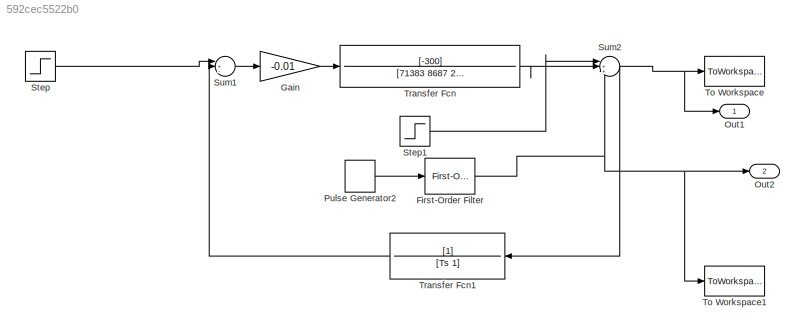
MODEL slx_592cec5522b0
KIND model
CONFIG AbsTol = auto
CONFIG EnableMultiTasking = off
CONFIG FixedStep = auto
CONFIG MaxStep = auto
CONFIG MinStep = auto
CONFIG RelTol = 1e-3
CONFIG SampleTimeConstraint = Unconstrained
CONFIG Solver = VariableStepAuto
CONFIG SolverName = VariableStepAuto
CONFIG StartTime = 0.0
CONFIG StopTime = 1000
BLOCK [Reference] First-Order Filter  REF=powerlib_meascontrol/Filters/First-Order
Filter
  Ports = [1, 1]
  SourceBlock = powerlib_meascontrol/Filters/First-Order\nFilter
  SourceProductBaseCode = PS
  SourceProductName = Simscape Power Systems
  SourceType = First-Order Filter
BLOCK [Gain] Gain
  Gain = -0.01
  OutDataTypeStr = Inherit: Inherit via internal rule
  ParamDataTypeStr = Inherit: Inherit via internal rule
  SaturateOnIntegerOverflow = off
BLOCK [Outport] Out1
  IconDisplay = Port number
BLOCK [Outport] Out2
  IconDisplay = Port number
  Port = 2
BLOCK [DiscretePulseGenerator] Pulse Generator2
  Amplitude = 90
  Period = 1000
  PhaseDelay = 30
  Ports = [0, 1]
  PulseType = Time based
  PulseWidth = 10
BLOCK [Step] Step
  After = 110
  SampleTime = 0
BLOCK [Step] Step1
  After = 110
  SampleTime = 0
BLOCK [Sum] Sum1
  IconShape = round
  InputSameDT = off
  Inputs = |+-+
  OutDataTypeStr = Inherit: Inherit via internal rule
  Ports = [3, 1]
  SaturateOnIntegerOverflow = off
BLOCK [Sum] Sum2
  IconShape = round
  InputSameDT = off
  Inputs = |+++
  OutDataTypeStr = Inherit: Inherit via internal rule
  Ports = [3, 1]
  SaturateOnIntegerOverflow = off
BLOCK [ToWorkspace] To Workspace
  FixptAsFi = on
  MaxDataPoints = inf
  Ports = [1]
  SampleTime = -1
  Save2DSignal = 3-D array (concatenate along third dimension)
  SaveFormat = Timeseries
  VariableName = simout
BLOCK [ToWorkspace] To Workspace1
  FixptAsFi = on
  MaxDataPoints = inf
  Ports = [1]
  SampleTime = -1
  Save2DSignal = 3-D array (concatenate along third dimension)
  SaveFormat = Timeseries
  VariableName = simout1
BLOCK [TransferFcn] Transfer Fcn
  Denominator = [71383 8687 281 1]
  Numerator = [-300]
BLOCK [TransferFcn] Transfer Fcn1
  Denominator = [Ts 1]
NET First-Order Filter:1 -> Out2:1, Sum2:3, To Workspace1:1
LINE Gain:1 -> Transfer Fcn:1
LINE Pulse Generator2:1 -> First-Order Filter:1
LINE Step1:1 -> Sum2:1
LINE Step:1 -> Sum1:1
LINE Sum1:1 -> Gain:1
NET Sum2:1 -> Out1:1, To Workspace:1, Transfer Fcn1:1
LINE Transfer Fcn1:1 -> Sum1:2
LINE Transfer Fcn:1 -> Sum2:2
note: NET lines group one-source signal fan-out (src -> all destinations, sorted); 1:1 wires keep LINE
